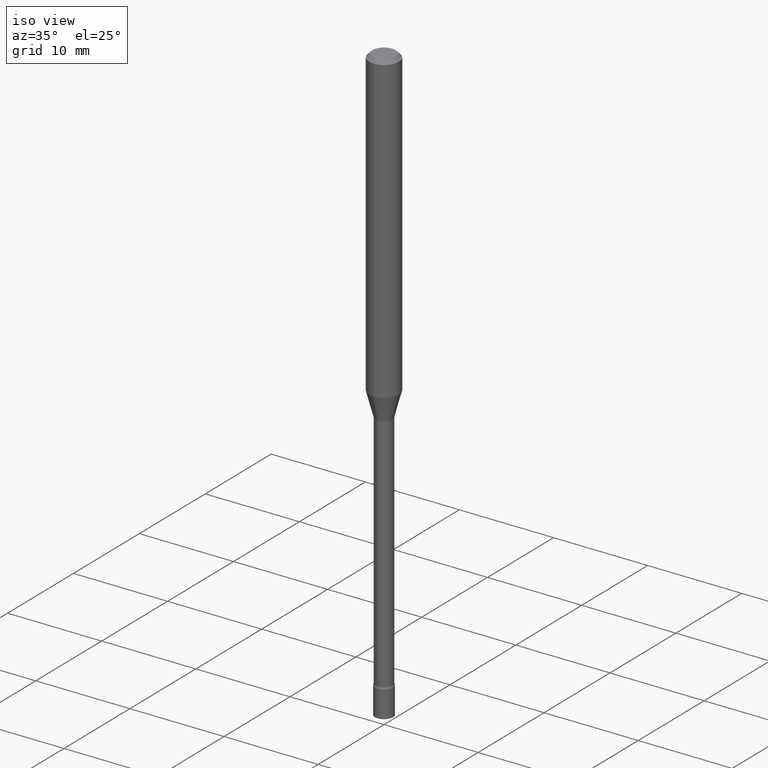
[diagram: clean part render]
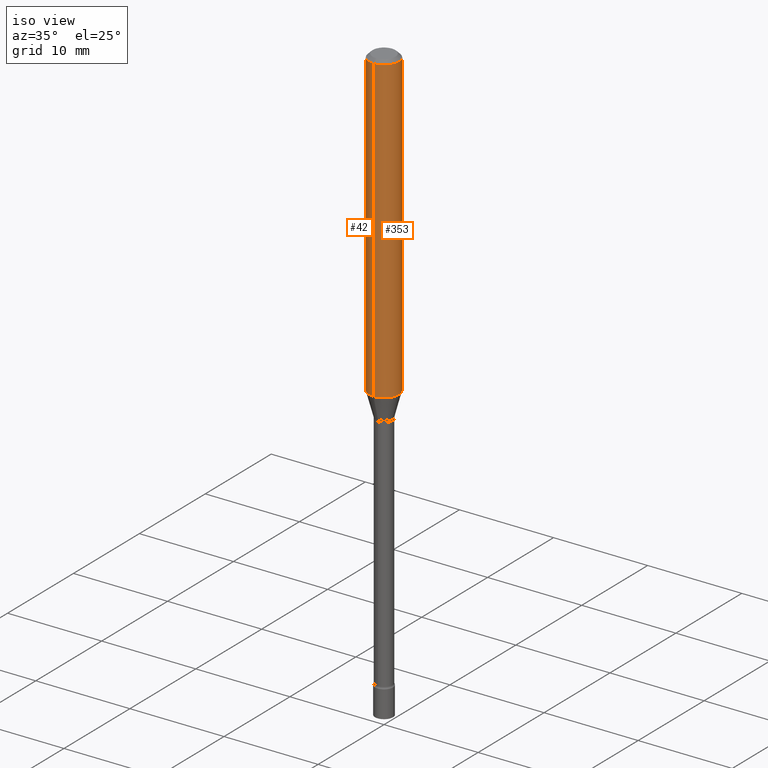
[diagram: same view with one multi-face feature highlighted, each face labeled with its STEP entity id]
A machine part, iso view. The highlighted faces form ONE feature: a constant-radius fillet chain: 2 tangent blend faces with common blend radius 1.5875 mm. The faces share edges in the B-rep.
Their STEP definitions:
[1] entity #42 (Cylinder):
#8 = ORIENTED_EDGE ( 'NONE', *, *, #487, .F. ) ;
#29 = AXIS2_PLACEMENT_3D ( 'NONE', #180, #471, #431 ) ;
#42 = ADVANCED_FACE ( 'NONE', ( #309 ), #514, .T. ) ;
#46 = VERTEX_POINT ( 'NONE', #263 ) ;
#67 = CARTESIAN_POINT ( 'NONE',  ( 4.440892098500625669E-16, 0.06250000000000000000, -2.182217030036971180E-16 ) ) ;
#72 = EDGE_CURVE ( 'NONE', #88, #502, #165, .T. ) ;
#80 = ORIENTED_EDGE ( 'NONE', *, *, #286, .T. ) ;
#88 = VERTEX_POINT ( 'NONE', #342 ) ;
#115 = DIRECTION ( 'NONE',  ( -6.982962677686265922E-15, -1.000000000000000000, 4.370956789862821150E-15 ) ) ;
#152 = CARTESIAN_POINT ( 'NONE',  ( -4.364351673553912750E-16, -0.06250000000000005551, -0.01499999999999981209 ) ) ;
#155 = CARTESIAN_POINT ( 'NONE',  ( -4.364351673553916201E-16, -0.06250000000000000000, 2.182217030036971180E-16 ) ) ;
#165 = CIRCLE ( 'NONE', #29, 0.06250000000000000000 ) ;
#180 = CARTESIAN_POINT ( 'NONE',  ( 3.668134173038386448E-31, -5.237320872088741752E-17, -0.01500000000000003067 ) ) ;
#213 = LINE ( 'NONE', #67, #486 ) ;
#243 = ORIENTED_EDGE ( 'NONE', *, *, #72, .F. ) ;
#256 = VECTOR ( 'NONE', #391, 39.37007874015748143 ) ;
#263 = CARTESIAN_POINT ( 'NONE',  ( 4.440892098500933817E-16, 0.06249999999999551747, -1.273301615493748873 ) ) ;
#276 = CARTESIAN_POINT ( 'NONE',  ( 0.000000000000000000, 0.000000000000000000, 0.000000000000000000 ) ) ;
#286 = EDGE_CURVE ( 'NONE', #46, #347, #495, .T. ) ;
#309 = FACE_OUTER_BOUND ( 'NONE', #361, .T. ) ;
#320 = AXIS2_PLACEMENT_3D ( 'NONE', #276, #423, #339 ) ;
#324 = ORIENTED_EDGE ( 'NONE', *, *, #368, .T. ) ;
#339 = DIRECTION ( 'NONE',  ( -6.982962677686265922E-15, -1.000000000000000000, 3.491547248059153888E-15 ) ) ;
#342 = CARTESIAN_POINT ( 'NONE',  ( 4.440892098500938748E-16, 0.06249999999999995143, -0.01500000000000024751 ) ) ;
#347 = VERTEX_POINT ( 'NONE', #440 ) ;
#349 = AXIS2_PLACEMENT_3D ( 'NONE', #500, #465, #115 ) ;
#361 = EDGE_LOOP ( 'NONE', ( #8, #80, #324, #243 ) ) ;
#368 = EDGE_CURVE ( 'NONE', #347, #502, #516, .T. ) ;
#391 = DIRECTION ( 'NONE',  ( -2.445422782025586364E-29, 3.491547248059153888E-15, 1.000000000000000000 ) ) ;
#423 = DIRECTION ( 'NONE',  ( -2.445422782025586364E-29, 3.491547248059153888E-15, 1.000000000000000000 ) ) ;
#431 = DIRECTION ( 'NONE',  ( -6.982962677686265922E-15, -1.000000000000000000, 3.483106191921935554E-15 ) ) ;
#436 = DIRECTION ( 'NONE',  ( -2.445422782025586364E-29, 3.491547248059153888E-15, 1.000000000000000000 ) ) ;
#440 = CARTESIAN_POINT ( 'NONE',  ( -4.364351673553607559E-16, -0.06250000000000446865, -1.273301615493748207 ) ) ;
#465 = DIRECTION ( 'NONE',  ( -2.445422782025586364E-29, 3.491547248059153888E-15, 1.000000000000000000 ) ) ;
#471 = DIRECTION ( 'NONE',  ( -2.445422782025586364E-29, 3.491547248059153888E-15, 1.000000000000000000 ) ) ;
#486 = VECTOR ( 'NONE', #436, 39.37007874015748143 ) ;
#487 = EDGE_CURVE ( 'NONE', #46, #88, #213, .T. ) ;
#495 = CIRCLE ( 'NONE', #349, 0.06250000000000000000 ) ;
#500 = CARTESIAN_POINT ( 'NONE',  ( 3.113760778918395764E-29, -4.445792751526472974E-15, -1.273301615493748429 ) ) ;
#502 = VERTEX_POINT ( 'NONE', #152 ) ;
#514 = CYLINDRICAL_SURFACE ( 'NONE', #320, 0.06250000000000000000 ) ;
#516 = LINE ( 'NONE', #155, #256 ) ;
[2] entity #353 (Cylinder):
#21 = DIRECTION ( 'NONE',  ( -2.445422782025586364E-29, 3.491547248059153888E-15, 1.000000000000000000 ) ) ;
#24 = DIRECTION ( 'NONE',  ( -6.982962677686265922E-15, -1.000000000000000000, 3.491547248059153888E-15 ) ) ;
#45 = AXIS2_PLACEMENT_3D ( 'NONE', #147, #318, #429 ) ;
#46 = VERTEX_POINT ( 'NONE', #263 ) ;
#63 = CARTESIAN_POINT ( 'NONE',  ( 0.000000000000000000, 0.000000000000000000, 0.000000000000000000 ) ) ;
#67 = CARTESIAN_POINT ( 'NONE',  ( 4.440892098500625669E-16, 0.06250000000000000000, -2.182217030036971180E-16 ) ) ;
#76 = CYLINDRICAL_SURFACE ( 'NONE', #281, 0.06250000000000000000 ) ;
#88 = VERTEX_POINT ( 'NONE', #342 ) ;
#138 = CIRCLE ( 'NONE', #148, 0.06250000000000000000 ) ;
#141 = ORIENTED_EDGE ( 'NONE', *, *, #283, .F. ) ;
#147 = CARTESIAN_POINT ( 'NONE',  ( 3.113760778918395764E-29, -4.445792751526472974E-15, -1.273301615493748429 ) ) ;
#148 = AXIS2_PLACEMENT_3D ( 'NONE', #352, #377, #478 ) ;
#152 = CARTESIAN_POINT ( 'NONE',  ( -4.364351673553912750E-16, -0.06250000000000005551, -0.01499999999999981209 ) ) ;
#155 = CARTESIAN_POINT ( 'NONE',  ( -4.364351673553916201E-16, -0.06250000000000000000, 2.182217030036971180E-16 ) ) ;
#203 = ORIENTED_EDGE ( 'NONE', *, *, #358, .T. ) ;
#212 = EDGE_LOOP ( 'NONE', ( #203, #496, #141, #284 ) ) ;
#213 = LINE ( 'NONE', #67, #486 ) ;
#238 = FACE_OUTER_BOUND ( 'NONE', #212, .T. ) ;
#256 = VECTOR ( 'NONE', #391, 39.37007874015748143 ) ;
#263 = CARTESIAN_POINT ( 'NONE',  ( 4.440892098500933817E-16, 0.06249999999999551747, -1.273301615493748873 ) ) ;
#281 = AXIS2_PLACEMENT_3D ( 'NONE', #63, #21, #24 ) ;
#283 = EDGE_CURVE ( 'NONE', #502, #88, #138, .T. ) ;
#284 = ORIENTED_EDGE ( 'NONE', *, *, #368, .F. ) ;
#318 = DIRECTION ( 'NONE',  ( -2.445422782025586364E-29, 3.491547248059153888E-15, 1.000000000000000000 ) ) ;
#342 = CARTESIAN_POINT ( 'NONE',  ( 4.440892098500938748E-16, 0.06249999999999995143, -0.01500000000000024751 ) ) ;
#347 = VERTEX_POINT ( 'NONE', #440 ) ;
#352 = CARTESIAN_POINT ( 'NONE',  ( 3.668134173038386448E-31, -5.237320872088741752E-17, -0.01500000000000003067 ) ) ;
#353 = ADVANCED_FACE ( 'NONE', ( #238 ), #76, .T. ) ;
#358 = EDGE_CURVE ( 'NONE', #347, #46, #437, .T. ) ;
#368 = EDGE_CURVE ( 'NONE', #347, #502, #516, .T. ) ;
#377 = DIRECTION ( 'NONE',  ( -2.445422782025586364E-29, 3.491547248059153888E-15, 1.000000000000000000 ) ) ;
#391 = DIRECTION ( 'NONE',  ( -2.445422782025586364E-29, 3.491547248059153888E-15, 1.000000000000000000 ) ) ;
#429 = DIRECTION ( 'NONE',  ( -6.982962677686265922E-15, -1.000000000000000000, 4.370956789862821150E-15 ) ) ;
#436 = DIRECTION ( 'NONE',  ( -2.445422782025586364E-29, 3.491547248059153888E-15, 1.000000000000000000 ) ) ;
#437 = CIRCLE ( 'NONE', #45, 0.06250000000000000000 ) ;
#440 = CARTESIAN_POINT ( 'NONE',  ( -4.364351673553607559E-16, -0.06250000000000446865, -1.273301615493748207 ) ) ;
#478 = DIRECTION ( 'NONE',  ( -6.982962677686265922E-15, -1.000000000000000000, 3.483106191921935554E-15 ) ) ;
#486 = VECTOR ( 'NONE', #436, 39.37007874015748143 ) ;
#487 = EDGE_CURVE ( 'NONE', #46, #88, #213, .T. ) ;
#496 = ORIENTED_EDGE ( 'NONE', *, *, #487, .T. ) ;
#502 = VERTEX_POINT ( 'NONE', #152 ) ;
#516 = LINE ( 'NONE', #155, #256 ) ;